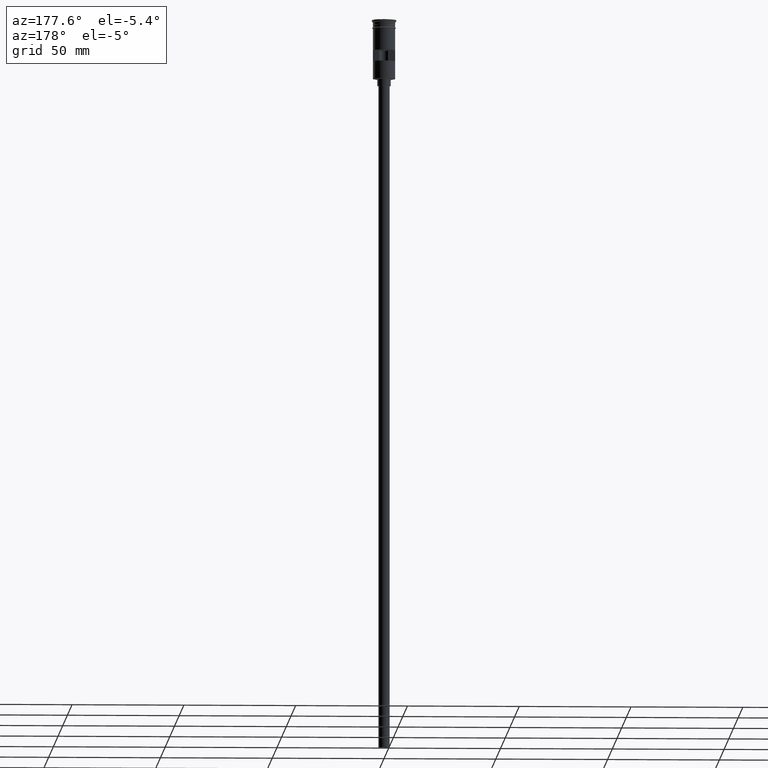
[diagram: clean part render]
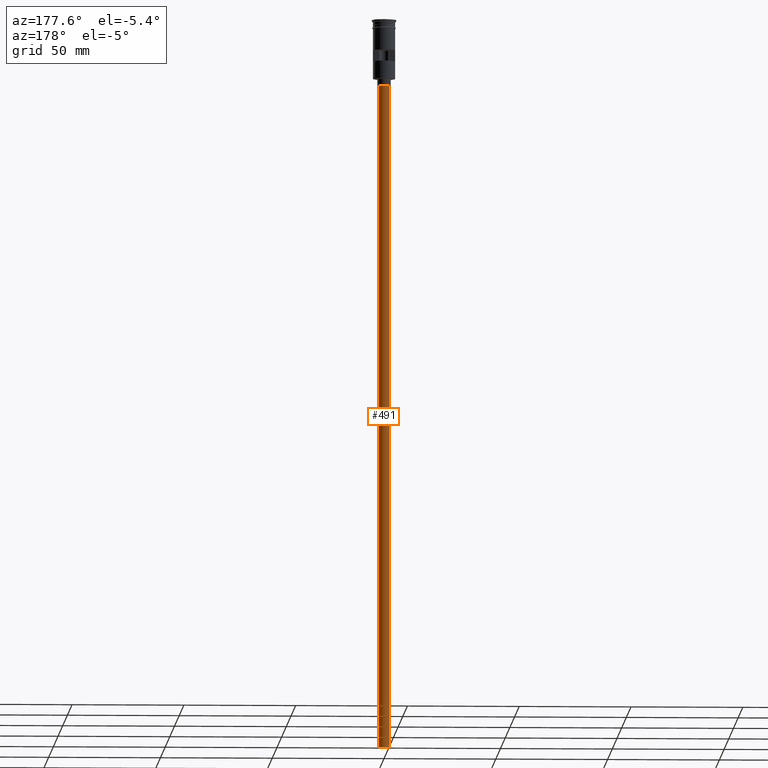
[diagram: same view with one face highlighted and labeled with its STEP entity id]
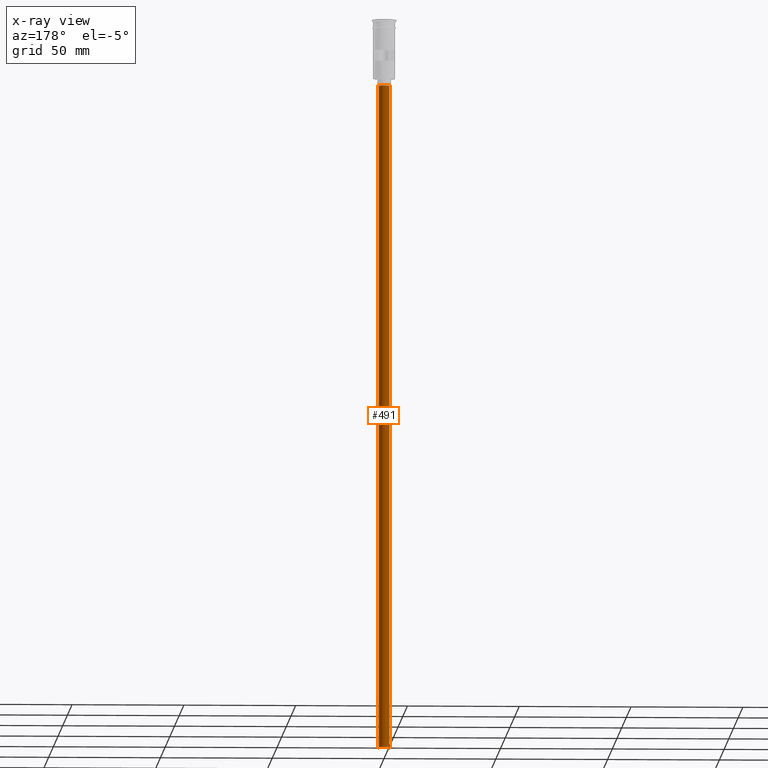
[diagram: x-ray of the same camera — body ghosted, the highlighted face saturated]
A machine part, auxiliary view. The second image highlights one B-rep face of the part: STEP entity #491.
The next image is the same camera in x-ray: the body ghosted, the highlighted face saturated — about 0% of this face is hidden behind the body in this view.
In plain terms, the highlighted cylindrical surface (edge-blend (fillet) strip) has radius 2.5 mm, axis along (-0, -0, 1).
Its self-contained STEP definition (entity closure, byte-faithful):
#86 = DIRECTION ( 'NONE',  ( 0.000000000000000000, 0.000000000000000000, -1.000000000000000000 ) ) ;
#118 = CARTESIAN_POINT ( 'NONE',  ( 2.500000000000000000, 0.000000000000000000, -326.5000000000000000 ) ) ;
#222 = FACE_OUTER_BOUND ( 'NONE', #1049, .T. ) ;
#262 = AXIS2_PLACEMENT_3D ( 'NONE', #1474, #354, #726 ) ;
#337 = VERTEX_POINT ( 'NONE', #1290 ) ;
#354 = DIRECTION ( 'NONE',  ( -0.000000000000000000, -0.000000000000000000, 1.000000000000000000 ) ) ;
#445 = CARTESIAN_POINT ( 'NONE',  ( -2.500000000000000000, 3.061616997868383141E-16, -326.5000000000000000 ) ) ;
#448 = VERTEX_POINT ( 'NONE', #458 ) ;
#449 = AXIS2_PLACEMENT_3D ( 'NONE', #1179, #1064, #688 ) ;
#454 = VECTOR ( 'NONE', #488, 1000.000000000000000 ) ;
#458 = CARTESIAN_POINT ( 'NONE',  ( 2.500000000000000000, 0.000000000000000000, -326.5000000000000000 ) ) ;
#488 = DIRECTION ( 'NONE',  ( -0.000000000000000000, -0.000000000000000000, 1.000000000000000000 ) ) ;
#491 = ADVANCED_FACE ( 'NONE', ( #222 ), #978, .T. ) ;
#499 = ORIENTED_EDGE ( 'NONE', *, *, #1517, .T. ) ;
#531 = CARTESIAN_POINT ( 'NONE',  ( 0.000000000000000000, 0.000000000000000000, -326.5000000000000000 ) ) ;
#561 = EDGE_CURVE ( 'NONE', #1294, #448, #1395, .T. ) ;
#660 = CARTESIAN_POINT ( 'NONE',  ( -2.500000000000000000, 3.061616997868383141E-16, -326.5000000000000000 ) ) ;
#688 = DIRECTION ( 'NONE',  ( -1.000000000000000000, 0.000000000000000000, 0.000000000000000000 ) ) ;
#726 = DIRECTION ( 'NONE',  ( 1.000000000000000000, 0.000000000000000000, 0.000000000000000000 ) ) ;
#754 = EDGE_CURVE ( 'NONE', #448, #337, #1245, .T. ) ;
#760 = ORIENTED_EDGE ( 'NONE', *, *, #754, .F. ) ;
#784 = DIRECTION ( 'NONE',  ( -1.000000000000000000, 0.000000000000000000, 0.000000000000000000 ) ) ;
#848 = AXIS2_PLACEMENT_3D ( 'NONE', #531, #86, #784 ) ;
#872 = CIRCLE ( 'NONE', #449, 2.500000000000000000 ) ;
#971 = DIRECTION ( 'NONE',  ( -0.000000000000000000, -0.000000000000000000, 1.000000000000000000 ) ) ;
#972 = LINE ( 'NONE', #660, #1210 ) ;
#978 = CYLINDRICAL_SURFACE ( 'NONE', #262, 2.500000000000000000 ) ;
#1049 = EDGE_LOOP ( 'NONE', ( #1168, #499, #1516, #760 ) ) ;
#1064 = DIRECTION ( 'NONE',  ( 0.000000000000000000, 0.000000000000000000, -1.000000000000000000 ) ) ;
#1168 = ORIENTED_EDGE ( 'NONE', *, *, #561, .F. ) ;
#1179 = CARTESIAN_POINT ( 'NONE',  ( 0.000000000000000000, 0.000000000000000000, -29.50000000000000000 ) ) ;
#1210 = VECTOR ( 'NONE', #971, 1000.000000000000000 ) ;
#1245 = LINE ( 'NONE', #118, #454 ) ;
#1270 = VERTEX_POINT ( 'NONE', #1406 ) ;
#1290 = CARTESIAN_POINT ( 'NONE',  ( 2.500000000000000000, 0.000000000000000000, -29.50000000000000000 ) ) ;
#1294 = VERTEX_POINT ( 'NONE', #445 ) ;
#1395 = CIRCLE ( 'NONE', #848, 2.500000000000000000 ) ;
#1406 = CARTESIAN_POINT ( 'NONE',  ( -2.500000000000000000, 3.061616997868383141E-16, -29.50000000000000000 ) ) ;
#1474 = CARTESIAN_POINT ( 'NONE',  ( 0.000000000000000000, 0.000000000000000000, -326.5000000000000000 ) ) ;
#1516 = ORIENTED_EDGE ( 'NONE', *, *, #1556, .T. ) ;
#1517 = EDGE_CURVE ( 'NONE', #1294, #1270, #972, .T. ) ;
#1556 = EDGE_CURVE ( 'NONE', #1270, #337, #872, .T. ) ;